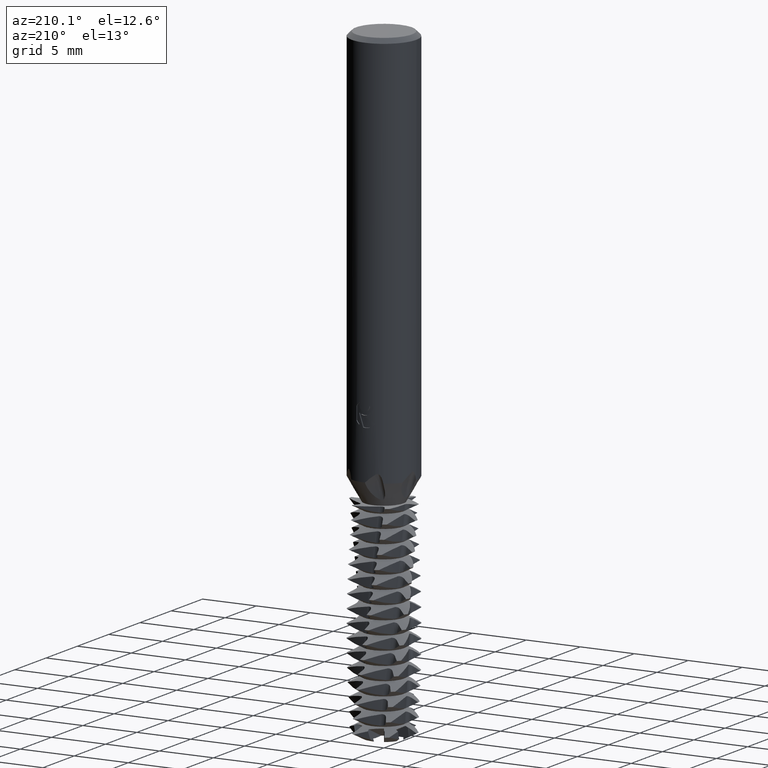
[diagram: clean part render]
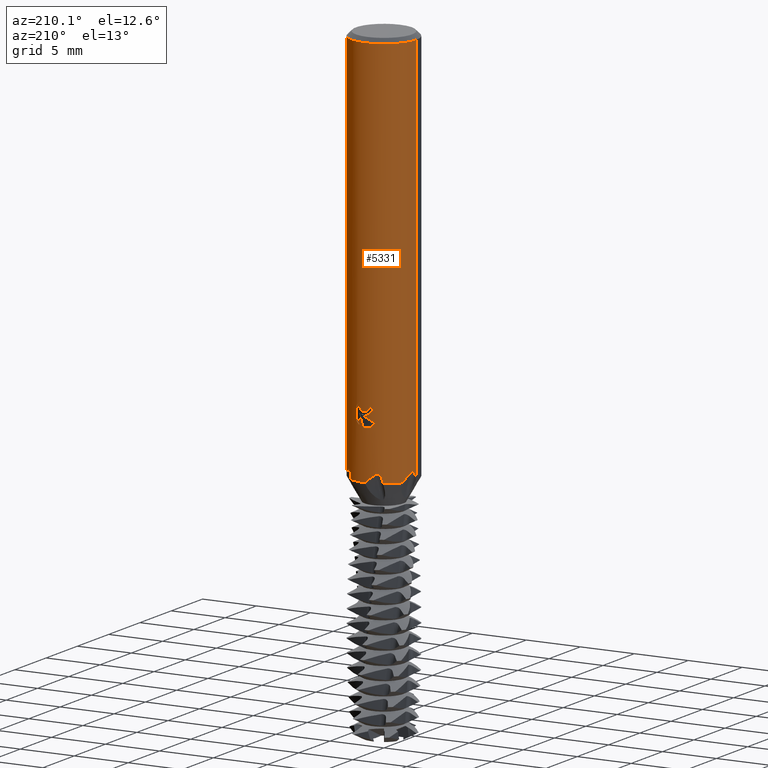
[diagram: same view with one face highlighted and labeled with its STEP entity id]
A machine part, auxiliary view. The second image highlights one B-rep face of the part: STEP entity #5331.
In plain terms, the highlighted cylindrical surface (partial cylindrical patch) has radius 3 mm, axis along (-0, -0, 1).
Its self-contained STEP definition (entity closure, byte-faithful):
#3035=EDGE_CURVE('',#3593,#5919,#8692,.T.);
#3069=VERTEX_POINT('',#8728);
#3123=EDGE_CURVE('',#6895,#4263,#8784,.T.);
#3193=EDGE_CURVE('',#4113,#5917,#8859,.T.);
#3329=VERTEX_POINT('',#9004);
#3381=VERTEX_POINT('',#9059);
#3475=EDGE_CURVE('',#5917,#3381,#9163,.T.);
#3593=VERTEX_POINT('',#9298);
#3607=EDGE_CURVE('',#4331,#3381,#9313,.T.);
#3623=EDGE_CURVE('',#6535,#5625,#9329,.T.);
#3693=EDGE_CURVE('',#3973,#3329,#9403,.T.);
#3857=VERTEX_POINT('',#9578);
#3937=EDGE_CURVE('',#7477,#7463,#9665,.T.);
#3959=EDGE_CURVE('',#8279,#5919,#9690,.T.);
#3973=VERTEX_POINT('',#9706);
#4059=EDGE_CURVE('',#5183,#4263,#9799,.T.);
#4113=VERTEX_POINT('',#9858);
#4263=VERTEX_POINT('',#10020);
#4331=VERTEX_POINT('',#10092);
#4335=VERTEX_POINT('',#10097);
#4349=VERTEX_POINT('',#10111);
#4801=EDGE_CURVE('',#5497,#7477,#10606,.T.);
#4829=EDGE_CURVE('',#4349,#3857,#10637,.T.);
#4845=EDGE_CURVE('',#6549,#3069,#10654,.T.);
#5091=EDGE_CURVE('',#7463,#6863,#10920,.T.);
#5121=VERTEX_POINT('',#10951);
#5181=VERTEX_POINT('',#11018);
#5183=VERTEX_POINT('',#11020);
#5331=ADVANCED_FACE('',(#11182,#11183),#11184,.T.);
#5497=VERTEX_POINT('',#11365);
#5625=VERTEX_POINT('',#11503);
#5897=EDGE_CURVE('',#6535,#7381,#11799,.T.);
#5917=VERTEX_POINT('',#11820);
#5919=VERTEX_POINT('',#11822);
#5925=EDGE_CURVE('',#7049,#5497,#11828,.T.);
#5969=VERTEX_POINT('',#11876);
#5985=EDGE_CURVE('',#8179,#5121,#11894,.T.);
#6211=EDGE_CURVE('',#7381,#4113,#12145,.T.);
#6535=VERTEX_POINT('',#12492);
#6549=VERTEX_POINT('',#12506);
#6745=EDGE_CURVE('',#5625,#5121,#12719,.T.);
#6753=EDGE_CURVE('',#3593,#4349,#12727,.T.);
#6863=VERTEX_POINT('',#12849);
#6895=VERTEX_POINT('',#12884);
#7049=VERTEX_POINT('',#13051);
#7153=EDGE_CURVE('',#5181,#7363,#13163,.T.);
#7165=VERTEX_POINT('',#13176);
#7219=EDGE_CURVE('',#3069,#7941,#13236,.T.);
#7249=EDGE_CURVE('',#7941,#7453,#13267,.T.);
#7295=EDGE_CURVE('',#7165,#6549,#13315,.T.);
#7317=EDGE_CURVE('',#3329,#5969,#13339,.T.);
#7363=VERTEX_POINT('',#13395);
#7379=VERTEX_POINT('',#13414);
#7381=VERTEX_POINT('',#13416);
#7391=EDGE_CURVE('',#4335,#7165,#13426,.T.);
#7397=EDGE_CURVE('',#3857,#5183,#13432,.T.);
#7453=VERTEX_POINT('',#13494);
#7463=VERTEX_POINT('',#13505);
#7477=VERTEX_POINT('',#13519);
#7575=EDGE_CURVE('',#7379,#8179,#13627,.T.);
#7749=EDGE_CURVE('',#7363,#8279,#13815,.T.);
#7929=EDGE_CURVE('',#4331,#5181,#14012,.T.);
#7941=VERTEX_POINT('',#14026);
#8039=EDGE_CURVE('',#7379,#6895,#14133,.T.);
#8179=VERTEX_POINT('',#14286);
#8279=VERTEX_POINT('',#14398);
#8315=EDGE_CURVE('',#5969,#4335,#14439,.T.);
#8443=EDGE_CURVE('',#6863,#3973,#14575,.T.);
#8535=EDGE_CURVE('',#7453,#7049,#14674,.T.);
#8692=CIRCLE('',#15108,3.0);
#8728=CARTESIAN_POINT('',(-0.374889326818675,2.97648416636767,-30.2114147991314));
#8784=CIRCLE('',#15375,3.0);
#8859=B_SPLINE_CURVE_WITH_KNOTS('',3,(#15637,#15638,#15639,#15640,#15641,#15642,#15643,#15644,#15645,#15646,#15647,#15648,#15649,#15650,#15651,#15652,#15653,#15654,#15655,#15656,#15657,#15658),.UNSPECIFIED.,.F.,.F.,(4,2,2,2,2,2,2,2,2,2,4),(0.0,0.429894945051172,0.744299524857573,0.972807913524228,1.14785783106501,1.29831336793423,1.45188908422906,1.65287204626003,1.96971497149822,2.47426665692935,2.98051194071608),.UNSPECIFIED.);
#9004=CARTESIAN_POINT('',(0.891473376764386,2.8644851576715,-31.5267771335505));
#9059=CARTESIAN_POINT('',(1.54380865566936,2.5722859161999,-36.5204758472839));
#9163=B_SPLINE_CURVE_WITH_KNOTS('',3,(#17395,#17396,#17397,#17398,#17399,#17400,#17401,#17402,#17403,#17404,#17405,#17406,#17407,#17408,#17409,#17410,#17411,#17412,#17413,#17414,#17415,#17416),.UNSPECIFIED.,.F.,.F.,(4,2,2,2,2,2,2,2,2,2,4),(0.0,1.8522031519724,3.70440630394481,5.55660945591721,6.48271103190341,7.40881260788961,8.33491418387581,9.26101575986201,11.1132189118344,12.9654220638068,14.8176252157792),.UNSPECIFIED.);
#9298=CARTESIAN_POINT('',(-2.58403707332399,1.52405787412657,-36.5204758472839));
#9313=CIRCLE('',#18402,3.0);
#9329=CIRCLE('',#18445,3.0);
#9403=B_SPLINE_CURVE_WITH_KNOTS('',3,(#18681,#18682,#18683,#18684,#18685,#18686),.UNSPECIFIED.,.F.,.F.,(4,2,4),(5.37061403560931,5.78319523502767,6.19635785632554),.UNSPECIFIED.);
#9578=CARTESIAN_POINT('',(-2.96501428171159,0.456826344737595,-35.7434369320341));
#9665=B_SPLINE_CURVE_WITH_KNOTS('',3,(#20207,#20208,#20209,#20210,#20211,#20212,#20213,#20214,#20215,#20216),.UNSPECIFIED.,.F.,.F.,(4,2,2,2,4),(3.7180505964763,4.13134061429957,4.54468699148887,4.95803336867818,5.37061460596984),.UNSPECIFIED.);
#9690=B_SPLINE_CURVE_WITH_KNOTS('',3,(#20405,#20406,#20407,#20408,#20409,#20410,#20411,#20412,#20413,#20414,#20415,#20416,#20417,#20418,#20419,#20420,#20421,#20422),.UNSPECIFIED.,.F.,.F.,(4,2,2,2,2,2,2,2,4),(0.0,1.30288244341097,2.60576488682195,3.90864733023292,5.21152977364389,6.51441221705487,7.81729466046584,9.12017710387681,10.4230595472878),.UNSPECIFIED.);
#9706=CARTESIAN_POINT('',(0.582373854505971,2.9429306301012,-31.8391567861021));
#9799=B_SPLINE_CURVE_WITH_KNOTS('',3,(#20868,#20869,#20870,#20871,#20872,#20873,#20874,#20875,#20876,#20877,#20878,#20879,#20880,#20881,#20882,#20883,#20884,#20885,#20886,#20887,#20888,#20889,#20890,#20891,#20892,#20893,#20894,#20895,#20896,#20897),.UNSPECIFIED.,.F.,.F.,(4,2,2,2,2,2,2,2,2,2,2,2,2,2,4),(0.0,1.1109967462916,2.22199349258321,4.44398698516642,5.55498373145802,6.66598047774963,7.77697722404123,8.88797397033283,9.99897071662444,11.109967462916,12.2209642092076,13.3319609554992,15.5539544480825,16.6649511943741,17.7759479406657),.UNSPECIFIED.);
#9858=CARTESIAN_POINT('',(1.87813036285146,2.33936451712851,-35.743436930271));
#10020=CARTESIAN_POINT('',(-2.99956927706072,0.0508345562920203,-36.5204758472839));
#10092=CARTESIAN_POINT('',(0.0278542991693245,2.99987068688265,-36.5204758472839));
#10097=CARTESIAN_POINT('',(0.532954484256243,2.95228039279997,-30.000000184582));
#10111=CARTESIAN_POINT('',(-2.91523429804562,0.708102384898168,-35.8207409246121));
#10606=B_SPLINE_CURVE_WITH_KNOTS('',3,(#24894,#24895,#24896,#24897,#24898,#24899,#24900,#24901,#24902,#24903),.UNSPECIFIED.,.F.,.F.,(4,2,2,2,4),(3.7180505964763,4.13134061429957,4.54468699148887,4.95803336867818,5.37061460596984),.UNSPECIFIED.);
#10637=B_SPLINE_CURVE_WITH_KNOTS('',3,(#25121,#25122,#25123,#25124,#25125,#25126,#25127,#25128,#25129,#25130,#25131,#25132,#25133,#25134,#25135,#25136,#25137,#25138,#25139,#25140,#25141,#25142),.UNSPECIFIED.,.F.,.F.,(4,2,2,2,2,2,2,2,2,2,4),(0.0,0.419839124885724,0.734193008932406,0.971026823468447,1.14567788264497,1.29588151022332,1.44826417780657,1.64611878588783,1.95551356744279,2.44687634464264,2.97551455291334),.UNSPECIFIED.);
#10654=B_SPLINE_CURVE_WITH_KNOTS('',3,(#25261,#25262,#25263,#25264,#25265,#25266,#25267,#25268,#25269,#25270,#25271,#25272,#25273,#25274,#25275,#25276,#25277,#25278,#25279,#25280,#25281,#25282,#25283,#25284,#25285,#25286,#25287),.UNSPECIFIED.,.F.,.F.,(4,2,3,2,2,2,2,2,2,2,2,2,4),(-0.361803933418174,-0.180901966709087,0.0,0.180901966709087,0.361803933418174,0.543174103043884,0.724544272669595,0.905125941717734,1.08570761076587,1.26652186351615,1.44733611626643,1.62815036901671,1.80896462176699),.UNSPECIFIED.);
#10920=ELLIPSE('',#26648,9.14398372010932,3.0);
#10951=CARTESIAN_POINT('',(3.0,3.67381906146713E-016,-0.399999999999999));
#11018=CARTESIAN_POINT('',(-0.84438249522065,2.87871815254028,-35.8207409246121));
#11020=CARTESIAN_POINT('',(-2.99735747351845,0.125889538656215,-36.2290858054188));
#11182=FACE_OUTER_BOUND('',#27968,.T.);
#11183=FACE_BOUND('',#27969,.T.);
#11184=CYLINDRICAL_SURFACE('',#27970,3.0);
#11365=CARTESIAN_POINT('',(-0.891368501628665,2.86451779437731,-31.581386927253));
#11503=CARTESIAN_POINT('',(3.0,3.67381906146713E-016,-36.5204758472839));
#11799=B_SPLINE_CURVE_WITH_KNOTS('',3,(#31310,#31311,#31312,#31313,#31314,#31315,#31316,#31317),.UNSPECIFIED.,.F.,.F.,(4,2,2,4),(0.0,1.06715499625699,1.69339863956184,2.32513282306337),.UNSPECIFIED.);
#11820=CARTESIAN_POINT('',(1.60770227530621,2.53284294696202,-36.2290858054188));
#11822=CARTESIAN_POINT('',(-1.45576062139136,2.62312047249192,-36.5204758472839));
#11828=ELLIPSE('',#31428,3.34478529612858,3.0);
#11876=CARTESIAN_POINT('',(0.891473376764386,2.8644851576715,-30.3433656243214));
#11894=CIRCLE('',#31801,3.0);
#12145=B_SPLINE_CURVE_WITH_KNOTS('',3,(#33175,#33176,#33177,#33178,#33179,#33180,#33181,#33182,#33183,#33184,#33185,#33186,#33187,#33188,#33189,#33190,#33191,#33192,#33193,#33194,#33195,#33196),.UNSPECIFIED.,.F.,.F.,(4,2,2,2,2,2,2,2,2,2,4),(0.0,0.429894945051172,0.744299524857573,0.972807913524228,1.14785783106501,1.29831336793423,1.45188908422906,1.65287204626003,1.96971497149822,2.47426665692935,2.98051194071608),.UNSPECIFIED.);
#12492=CARTESIAN_POINT('',(2.61189137249331,1.47581281275608,-36.5204758472839));
#12506=CARTESIAN_POINT('',(-0.324252629588696,2.98242522659074,-30.4288558322004));
#12719=LINE('',#36292,#36293);
#12727=B_SPLINE_CURVE_WITH_KNOTS('',3,(#36316,#36317,#36318,#36319,#36320,#36321),.UNSPECIFIED.,.F.,.F.,(4,2,4),(0.0,0.802659644207011,1.61391893733511),.UNSPECIFIED.);
#12849=CARTESIAN_POINT('',(0.582373854505972,2.9429306301012,-30.8799287730727));
#12884=CARTESIAN_POINT('',(-3.0,-3.67381906146713E-016,-36.5204758472839));
#13051=CARTESIAN_POINT('',(0.382084690553746,2.9755690698158,-30.9535533116178));
#13163=B_SPLINE_CURVE_WITH_KNOTS('',3,(#38747,#38748,#38749,#38750,#38751,#38752,#38753,#38754,#38755,#38756,#38757,#38758,#38759,#38760,#38761,#38762,#38763,#38764),.UNSPECIFIED.,.F.,.F.,(4,2,2,2,2,2,2,2,4),(0.0,0.182905243946741,0.312250991405555,0.414721280745218,0.512819152749077,0.629772986335081,0.802075148146783,1.06599409195254,1.50610069878895),.UNSPECIFIED.);
#13176=CARTESIAN_POINT('',(1.73559189833068E-015,3.0,-30.6821792078495));
#13236=CIRCLE('',#39309,3.0);
#13267=B_SPLINE_CURVE_WITH_KNOTS('',3,(#39451,#39452,#39453,#39454,#39455,#39456,#39457,#39458,#39459,#39460,#39461,#39462,#39463,#39464),.UNSPECIFIED.,.F.,.F.,(4,2,2,2,2,2,4),(2.09113289106874,2.38963585353195,2.68813881599517,2.98664177845838,3.28438387238361,3.58212596630883,3.88192308218951),.UNSPECIFIED.);
#13315=B_SPLINE_CURVE_WITH_KNOTS('',3,(#39674,#39675,#39676,#39677,#39678,#39679,#39680,#39681,#39682,#39683,#39684,#39685,#39686,#39687,#39688,#39689,#39690,#39691,#39692,#39693,#39694,#39695,#39696,#39697,#39698,#39699,#39700),.UNSPECIFIED.,.F.,.F.,(4,2,3,2,2,2,2,2,2,2,2,2,4),(-0.361803933418174,-0.180901966709087,0.0,0.180901966709087,0.361803933418174,0.543174103043884,0.724544272669595,0.905125941717734,1.08570761076587,1.26652186351615,1.44733611626643,1.62815036901671,1.80896462176699),.UNSPECIFIED.);
#13339=LINE('',#39798,#39799);
#13395=CARTESIAN_POINT('',(-1.08688392119502,2.79619086291473,-35.743436932034));
#13414=CARTESIAN_POINT('',(-3.0,-3.67381906146713E-016,-0.399999999999999));
#13416=CARTESIAN_POINT('',(2.07085180282496,2.17061576764212,-35.8207409246121));
#13426=B_SPLINE_CURVE_WITH_KNOTS('',3,(#40358,#40359,#40360,#40361,#40362,#40363,#40364,#40365,#40366,#40367,#40368,#40369,#40370,#40371,#40372,#40373,#40374,#40375,#40376,#40377,#40378,#40379,#40380,#40381,#40382,#40383,#40384),.UNSPECIFIED.,.F.,.F.,(4,2,3,2,2,2,2,2,2,2,2,2,4),(-0.361803933418174,-0.180901966709087,0.0,0.180901966709087,0.361803933418174,0.543174103043884,0.724544272669595,0.905125941717734,1.08570761076587,1.26652186351615,1.44733611626643,1.62815036901671,1.80896462176699),.UNSPECIFIED.);
#13432=B_SPLINE_CURVE_WITH_KNOTS('',3,(#40392,#40393,#40394,#40395,#40396,#40397,#40398,#40399,#40400,#40401,#40402,#40403,#40404,#40405,#40406,#40407,#40408,#40409,#40410,#40411,#40412,#40413),.UNSPECIFIED.,.F.,.F.,(4,2,2,2,2,2,2,2,2,2,4),(0.0,0.419839124885724,0.734193008932406,0.971026823468447,1.14567788264497,1.29588151022332,1.44826417780657,1.64611878588783,1.95551356744279,2.44687634464264,2.97551455291334),.UNSPECIFIED.);
#13494=CARTESIAN_POINT('',(-1.62056928315541E-016,3.0,-31.0000534367921));
#13505=CARTESIAN_POINT('',(0.193402084690554,2.99375944819175,-31.9998885993485));
#13519=CARTESIAN_POINT('',(-4.20342910929293E-016,3.0,-32.0206835734022));
#13627=CIRCLE('',#41516,3.0);
#13815=B_SPLINE_CURVE_WITH_KNOTS('',3,(#42283,#42284,#42285,#42286,#42287,#42288,#42289,#42290,#42291,#42292,#42293,#42294,#42295,#42296,#42297,#42298,#42299,#42300),.UNSPECIFIED.,.F.,.F.,(4,2,2,2,2,2,2,2,4),(0.0,0.182905243946741,0.312250991405555,0.414721280745218,0.512819152749077,0.629772986335081,0.802075148146783,1.06599409195254,1.50610069878895),.UNSPECIFIED.);
#14012=B_SPLINE_CURVE_WITH_KNOTS('',3,(#43115,#43116,#43117,#43118,#43119,#43120),.UNSPECIFIED.,.F.,.F.,(4,2,4),(0.0,0.769435495781174,1.519822892582),.UNSPECIFIED.);
#14026=CARTESIAN_POINT('',(-0.690048935939197,2.91956032066631,-30.2114147991314));
#14133=LINE('',#43772,#43773);
#14286=CARTESIAN_POINT('',(0.0,3.0,-0.399999999999999));
#14398=CARTESIAN_POINT('',(-1.38965519821224,2.65873248561823,-36.2290858054188));
#14439=B_SPLINE_CURVE_WITH_KNOTS('',3,(#45401,#45402,#45403,#45404,#45405,#45406),.UNSPECIFIED.,.F.,.F.,(4,2,4),(0.413162635699146,0.826325271398292,1.2389064846868),.UNSPECIFIED.);
#14575=LINE('',#46053,#46054);
#14674=B_SPLINE_CURVE_WITH_KNOTS('',3,(#46616,#46617,#46618,#46619,#46620,#46621,#46622,#46623,#46624,#46625,#46626,#46627,#46628,#46629),.UNSPECIFIED.,.F.,.F.,(4,2,2,2,2,2,4),(2.09113289106874,2.38963585353195,2.68813881599517,2.98664177845838,3.28438387238361,3.58212596630883,3.88192308218951),.UNSPECIFIED.);
#15108=AXIS2_PLACEMENT_3D('',#46751,#46752,#46753);
#15375=AXIS2_PLACEMENT_3D('',#46801,#46802,#46803);
#15637=CARTESIAN_POINT('',(2.13206020542349,2.11052583032039,-36.5209676838103));
#15638=CARTESIAN_POINT('',(2.15164541267667,2.09074078888683,-36.3803996259911));
#15639=CARTESIAN_POINT('',(2.156889872643,2.08518517846577,-36.2451093580247));
#15640=CARTESIAN_POINT('',(2.14107575005316,2.10140100342424,-36.0384214199832));
#15641=CARTESIAN_POINT('',(2.12690410536444,2.11591695693535,-35.9629422580567));
#15642=CARTESIAN_POINT('',(2.09157472239241,2.15075598640957,-35.8574251414258));
#15643=CARTESIAN_POINT('',(2.0734747718693,2.16829844712777,-35.8208847408643));
#15644=CARTESIAN_POINT('',(2.03668843011507,2.20281160654624,-35.7714448823329));
#15645=CARTESIAN_POINT('',(2.01821648137218,2.21982069529535,-35.7537925202219));
#15646=CARTESIAN_POINT('',(1.97892784999315,2.25486957549707,-35.7322951963295));
#15647=CARTESIAN_POINT('',(1.95966962041502,2.2716482635832,-35.7273461662947));
#15648=CARTESIAN_POINT('',(1.91915050160728,2.30598810883786,-35.7277563597803));
#15649=CARTESIAN_POINT('',(1.89888808252604,2.32268261453498,-35.7333134565215));
#15650=CARTESIAN_POINT('',(1.85370246017431,2.35899703027452,-35.7553388369102));
#15651=CARTESIAN_POINT('',(1.82968575867676,2.37760252280092,-35.7744235573319));
#15652=CARTESIAN_POINT('',(1.77361422839766,2.41994647178829,-35.831903552503));
#15653=CARTESIAN_POINT('',(1.74355309897655,2.44151061204243,-35.8764090640133));
#15654=CARTESIAN_POINT('',(1.67800262751282,2.4873117989547,-35.9969842268149));
#15655=CARTESIAN_POINT('',(1.64285847137458,2.51038209834154,-36.0889252854333));
#15656=CARTESIAN_POINT('',(1.58942633550985,2.54454964585405,-36.2993691409393));
#15657=CARTESIAN_POINT('',(1.57300065541601,2.5545508436338,-36.4108948803172));
#15658=CARTESIAN_POINT('',(1.56633539808355,2.55863116152181,-36.5209676838103));
#17395=CARTESIAN_POINT('',(2.87266756705601,0.86474334295473,-31.3649487792908));
#17396=CARTESIAN_POINT('',(2.78275702966515,1.16342512732878,-31.8977614520963));
#17397=CARTESIAN_POINT('',(2.64997985782,1.43457720676138,-32.4628663141818));
#17398=CARTESIAN_POINT('',(2.33426117367684,1.90568346269897,-33.632301232698));
#17399=CARTESIAN_POINT('',(2.15059285653007,2.10491733529039,-34.2367250180236));
#17400=CARTESIAN_POINT('',(1.79493810228648,2.41534653486289,-35.4668194662849));
#17401=CARTESIAN_POINT('',(1.62417735102327,2.52617623539687,-36.0938166563847));
#17402=CARTESIAN_POINT('',(1.44282334958125,2.63118610981709,-37.0370909318227));
#17403=CARTESIAN_POINT('',(1.39483093247364,2.65626632460214,-37.3520049948315));
#17404=CARTESIAN_POINT('',(1.33048630207349,2.68907238974332,-37.9791084338925));
#17405=CARTESIAN_POINT('',(1.31417214534074,2.69684103580662,-38.2912994746713));
#17406=CARTESIAN_POINT('',(1.31417214534074,2.69684103580662,-38.9087005253287));
#17407=CARTESIAN_POINT('',(1.33048630207349,2.68907238974332,-39.2208915661075));
#17408=CARTESIAN_POINT('',(1.39483093247364,2.65626632460214,-39.8479950051685));
#17409=CARTESIAN_POINT('',(1.44282334958125,2.63118610981708,-40.1629090681773));
#17410=CARTESIAN_POINT('',(1.62417735102327,2.52617623539687,-41.1061833436153));
#17411=CARTESIAN_POINT('',(1.79493810228648,2.4153465348629,-41.7331805337151));
#17412=CARTESIAN_POINT('',(2.15059285653006,2.10491733529039,-42.9632749819764));
#17413=CARTESIAN_POINT('',(2.33426117367684,1.90568346269897,-43.5676987673019));
#17414=CARTESIAN_POINT('',(2.64997985782,1.43457720676138,-44.7371336858182));
#17415=CARTESIAN_POINT('',(2.78275702966515,1.16342512732878,-45.3022385479037));
#17416=CARTESIAN_POINT('',(2.87266756705601,0.864743342954729,-45.8350512207092));
#18402=AXIS2_PLACEMENT_3D('',#47242,#47243,#47244);
#18445=AXIS2_PLACEMENT_3D('',#47246,#47247,#47248);
#18681=CARTESIAN_POINT('',(0.398123698004262,2.97346557422268,-31.9375657715496));
#18682=CARTESIAN_POINT('',(0.531694134430897,2.95558154132786,-31.8820012071797));
#18683=CARTESIAN_POINT('',(0.652986684836442,2.92973948468781,-31.7986530435559));
#18684=CARTESIAN_POINT('',(0.844504834229856,2.88038264567376,-31.6072212554403));
#18685=CARTESIAN_POINT('',(0.927882280849386,2.85350635586587,-31.48591873854));
#18686=CARTESIAN_POINT('',(0.983486691170998,2.8342113415004,-31.3523418975951));
#20207=CARTESIAN_POINT('',(-1.02132776817343,2.82079591426921,-31.3522829864432));
#20208=CARTESIAN_POINT('',(-0.965764390649038,2.84091377135135,-31.4857834663591));
#20209=CARTESIAN_POINT('',(-0.882488696185025,2.86897832973726,-31.6069660991348));
#20210=CARTESIAN_POINT('',(-0.691193523521741,2.92097195256754,-31.798350851362));
#20211=CARTESIAN_POINT('',(-0.569948678637509,2.94845618546556,-31.881755621575));
#20212=CARTESIAN_POINT('',(-0.302743898392696,2.98773852714254,-31.9930383682645));
#20213=CARTESIAN_POINT('',(-0.156687501965709,2.99907201328984,-32.0208482223391));
#20214=CARTESIAN_POINT('',(0.118616234604332,3.00080720579868,-32.0208482223391));
#20215=CARTESIAN_POINT('',(0.264553433001764,2.99134959251714,-31.9931306302633));
#20216=CARTESIAN_POINT('',(0.39812388065688,2.97346554976692,-31.937566060937));
#20405=CARTESIAN_POINT('',(-0.33877072290892,2.98081103012247,-33.3386970799754));
#20406=CARTESIAN_POINT('',(-0.522387614677131,2.9599428749345,-33.7317120465772));
#20407=CARTESIAN_POINT('',(-0.703073997634441,2.92155534880515,-34.1473996086188));
#20408=CARTESIAN_POINT('',(-1.03354240807752,2.82162873839005,-35.0070576931305));
#20409=CARTESIAN_POINT('',(-1.18305602443361,2.76023414879084,-35.4511481626328));
#20410=CARTESIAN_POINT('',(-1.42805932340697,2.64180959782692,-36.3516272722531));
#20411=CARTESIAN_POINT('',(-1.5233502211041,2.58550576035101,-36.8086175174777));
#20412=CARTESIAN_POINT('',(-1.64851850650812,2.50755312157797,-37.7156336152819));
#20413=CARTESIAN_POINT('',(-1.6784467743065,2.48652698071429,-38.1657058521963));
#20414=CARTESIAN_POINT('',(-1.6784467743065,2.48652698071429,-39.0342941478037));
#20415=CARTESIAN_POINT('',(-1.64851850650812,2.50755312157797,-39.4843663847181));
#20416=CARTESIAN_POINT('',(-1.5233502211041,2.58550576035101,-40.3913824825223));
#20417=CARTESIAN_POINT('',(-1.42805932340697,2.64180959782692,-40.8483727277469));
#20418=CARTESIAN_POINT('',(-1.18305602443361,2.76023414879084,-41.7488518373672));
#20419=CARTESIAN_POINT('',(-1.03354240807751,2.82162873839005,-42.1929423068695));
#20420=CARTESIAN_POINT('',(-0.703073997634433,2.92155534880515,-43.0526003913812));
#20421=CARTESIAN_POINT('',(-0.522387614677135,2.9599428749345,-43.4682879534229));
#20422=CARTESIAN_POINT('',(-0.338770722908923,2.98081103012247,-43.8613029200246));
#20868=CARTESIAN_POINT('',(-1.59958525082729,2.53797695524128,-30.1860908076423));
#20869=CARTESIAN_POINT('',(-1.78341134517344,2.42211872862261,-30.4859754735336));
#20870=CARTESIAN_POINT('',(-1.94210553755449,2.29477091694835,-30.797837323771));
#20871=CARTESIAN_POINT('',(-2.22187065339716,2.02510203039488,-31.4387520245088));
#20872=CARTESIAN_POINT('',(-2.3426346375062,1.8826593308073,-31.7678876372867));
#20873=CARTESIAN_POINT('',(-2.65483433686594,1.44264437271394,-32.7755014173818));
#20874=CARTESIAN_POINT('',(-2.79517455687149,1.13096429800967,-33.473409638152));
#20875=CARTESIAN_POINT('',(-2.92255462008151,0.694031240860119,-34.5444446317688));
#20876=CARTESIAN_POINT('',(-2.95125105066657,0.553853014457472,-34.9056868185497));
#20877=CARTESIAN_POINT('',(-2.98789701006071,0.298508594696432,-35.6344682912949));
#20878=CARTESIAN_POINT('',(-2.99590338594857,0.183471350753219,-36.0020498915696));
#20879=CARTESIAN_POINT('',(-3.00150737631061,-0.00722110610543583,-36.7412689994485));
#20880=CARTESIAN_POINT('',(-2.99928910705556,-0.0827600833583237,-37.1130569644805));
#20881=CARTESIAN_POINT('',(-2.99476305794572,-0.184332865338249,-37.8572522571078));
#20882=CARTESIAN_POINT('',(-2.99261891964724,-0.210314055092331,-38.2296677512361));
#20883=CARTESIAN_POINT('',(-2.99261891964724,-0.210314055092331,-38.9703322487639));
#20884=CARTESIAN_POINT('',(-2.99476305794572,-0.184332865338247,-39.3427477428922));
#20885=CARTESIAN_POINT('',(-2.99928910705556,-0.0827600833583208,-40.0869430355195));
#20886=CARTESIAN_POINT('',(-3.00150737631061,-0.00722110610543534,-40.4587310005516));
#20887=CARTESIAN_POINT('',(-2.99590338594857,0.18347135075322,-41.1979501084304));
#20888=CARTESIAN_POINT('',(-2.98789701006071,0.298508594696433,-41.5655317087051));
#20889=CARTESIAN_POINT('',(-2.95125105066657,0.553853014457473,-42.2943131814503));
#20890=CARTESIAN_POINT('',(-2.92255462008151,0.69403124086012,-42.6555553682312));
#20891=CARTESIAN_POINT('',(-2.79517455687149,1.13096429800968,-43.726590361848));
#20892=CARTESIAN_POINT('',(-2.65483433686594,1.44264437271394,-44.4244985826182));
#20893=CARTESIAN_POINT('',(-2.3426346375062,1.8826593308073,-45.4321123627133));
#20894=CARTESIAN_POINT('',(-2.22187065339716,2.02510203039488,-45.7612479754912));
#20895=CARTESIAN_POINT('',(-1.94210553755448,2.29477091694835,-46.402162676229));
#20896=CARTESIAN_POINT('',(-1.78341134517344,2.42211872862262,-46.7140245264664));
#20897=CARTESIAN_POINT('',(-1.59958525082729,2.53797695524128,-47.0139091923577));
#24894=CARTESIAN_POINT('',(-1.02132776817343,2.82079591426921,-31.3522829864432));
#24895=CARTESIAN_POINT('',(-0.965764390649038,2.84091377135135,-31.4857834663591));
#24896=CARTESIAN_POINT('',(-0.882488696185025,2.86897832973726,-31.6069660991348));
#24897=CARTESIAN_POINT('',(-0.691193523521741,2.92097195256754,-31.798350851362));
#24898=CARTESIAN_POINT('',(-0.569948678637509,2.94845618546556,-31.881755621575));
#24899=CARTESIAN_POINT('',(-0.302743898392696,2.98773852714254,-31.9930383682645));
#24900=CARTESIAN_POINT('',(-0.156687501965709,2.99907201328984,-32.0208482223391));
#24901=CARTESIAN_POINT('',(0.118616234604332,3.00080720579868,-32.0208482223391));
#24902=CARTESIAN_POINT('',(0.264553433001764,2.99134959251714,-31.9931306302633));
#24903=CARTESIAN_POINT('',(0.39812388065688,2.97346554976692,-31.937566060937));
#25121=CARTESIAN_POINT('',(-2.89379469113468,0.791171464071312,-36.5208835059126));
#25122=CARTESIAN_POINT('',(-2.88662642887239,0.817390153977699,-36.3836021008327));
#25123=CARTESIAN_POINT('',(-2.88435656077576,0.825002398709584,-36.251211158922));
#25124=CARTESIAN_POINT('',(-2.89000221217002,0.804963769095807,-36.045698653264));
#25125=CARTESIAN_POINT('',(-2.89534063216374,0.786002456077185,-35.9694141048295));
#25126=CARTESIAN_POINT('',(-2.90786092971234,0.738103876821044,-35.8606999204886));
#25127=CARTESIAN_POINT('',(-2.91421281920717,0.712909626228013,-35.8223791241265));
#25128=CARTESIAN_POINT('',(-2.92594211749639,0.6628268085445,-35.7717776345772));
#25129=CARTESIAN_POINT('',(-2.93142988389763,0.63837148545516,-35.7540721279694));
#25130=CARTESIAN_POINT('',(-2.94213467158577,0.586885660793181,-35.7324357243297));
#25131=CARTESIAN_POINT('',(-2.94703934912745,0.561827599110932,-35.7274121369592));
#25132=CARTESIAN_POINT('',(-2.95650116898137,0.509717778607978,-35.7276813127617));
#25133=CARTESIAN_POINT('',(-2.96081181216587,0.483961019085416,-35.7331107195804));
#25134=CARTESIAN_POINT('',(-2.96960714853115,0.427184738487115,-35.7546876907307));
#25135=CARTESIAN_POINT('',(-2.97368338173385,0.397413563511671,-35.7733303224062));
#25136=CARTESIAN_POINT('',(-2.98224256512117,0.328656849023464,-35.8293248517033));
#25137=CARTESIAN_POINT('',(-2.98587797264376,0.292345468747305,-35.872524158663));
#25138=CARTESIAN_POINT('',(-2.99278037587301,0.213586478334041,-35.9895996651486));
#25139=CARTESIAN_POINT('',(-2.99523508382718,0.171997840063994,-36.0785324483698));
#25140=CARTESIAN_POINT('',(-2.99832693200841,0.10588740967928,-36.2897026585663));
#25141=CARTESIAN_POINT('',(-2.99879740039049,0.085326525836005,-36.4061409966515));
#25142=CARTESIAN_POINT('',(-2.99900713003407,0.0771766415752693,-36.5208835059126));
#25261=CARTESIAN_POINT('',(0.443458573511027,2.96704305556552,-29.8757743432194));
#25262=CARTESIAN_POINT('',(0.485833328670291,2.96070966298446,-29.9182059037109));
#25263=CARTESIAN_POINT('',(0.522637343391951,2.95422887694859,-29.971956129247));
#25264=CARTESIAN_POINT('',(0.571525001841125,2.94516166464756,-30.089910892921));
#25265=CARTESIAN_POINT('',(0.583600654125711,2.94268759410578,-30.1541273528215));
#25266=CARTESIAN_POINT('',(0.583600654125711,2.94268759410578,-30.2144280083912));
#25267=CARTESIAN_POINT('',(0.583600654125711,2.94268759410578,-30.2747286639609));
#25268=CARTESIAN_POINT('',(0.571525001841125,2.94516166464756,-30.3389451238613));
#25269=CARTESIAN_POINT('',(0.522637343391951,2.95422887694859,-30.4568998875354));
#25270=CARTESIAN_POINT('',(0.485833328670291,2.96070966298446,-30.5106501130715));
#25271=CARTESIAN_POINT('',(0.400974145779831,2.9733928399688,-30.5956230536475));
#25272=CARTESIAN_POINT('',(0.347166389616654,2.98043529839111,-30.6325291682214));
#25273=CARTESIAN_POINT('',(0.229071320322516,2.99182977456438,-30.6815604886868));
#25274=CARTESIAN_POINT('',(0.164771066124543,2.99608169300326,-30.6936777351831));
#25275=CARTESIAN_POINT('',(0.044193463019362,3.00027836078279,-30.6936777351831));
#25276=CARTESIAN_POINT('',(-0.0199852468881946,3.00051424174061,-30.6816545910218));
#25277=CARTESIAN_POINT('',(-0.138014197498445,2.99740507878826,-30.6327811002069));
#25278=CARTESIAN_POINT('',(-0.191868347012512,2.99416186702984,-30.5959337682488));
#25279=CARTESIAN_POINT('',(-0.276955968165236,2.98749373694095,-30.510918928236));
#25280=CARTESIAN_POINT('',(-0.313862744780408,2.98363829793416,-30.4570480993303));
#25281=CARTESIAN_POINT('',(-0.362835918148008,2.97807948468445,-30.338941579708));
#25282=CARTESIAN_POINT('',(-0.374898799458164,2.97648297326977,-30.2746994259746));
#25283=CARTESIAN_POINT('',(-0.374898799458164,2.97648297326977,-30.1541565908078));
#25284=CARTESIAN_POINT('',(-0.362835918148008,2.97807948468445,-30.0899144370744));
#25285=CARTESIAN_POINT('',(-0.313862744780408,2.98363829793416,-29.9718079174521));
#25286=CARTESIAN_POINT('',(-0.276955968165236,2.98749373694095,-29.9179370885464));
#25287=CARTESIAN_POINT('',(-0.234384777653546,2.99082994769082,-29.8754023120245));
#26648=AXIS2_PLACEMENT_3D('',#48449,#48450,#48451);
#27968=EDGE_LOOP('',(#48683,#48684,#48685,#48686,#48687,#48688,#48689,#48690,#48691,#48692,#48693,#48694,#48695,#48696,#48697,#48698,#48699,#48700,#48701,#48702));
#27969=EDGE_LOOP('',(#48703,#48704,#48705,#48706,#48707,#48708,#48709,#48710,#48711,#48712,#48713,#48714,#48715,#48716));
#27970=AXIS2_PLACEMENT_3D('',#48717,#48718,#48719);
#31310=CARTESIAN_POINT('',(2.61213765204221,1.47537686262982,-36.5209676838103));
#31311=CARTESIAN_POINT('',(2.487345959704,1.69631910896386,-36.2716745048221));
#31312=CARTESIAN_POINT('',(2.32036696445764,1.9247462504315,-36.0534853302432));
#31313=CARTESIAN_POINT('',(1.98407514624786,2.25699123505467,-35.7389289893991));
#31314=CARTESIAN_POINT('',(1.8448539439908,2.37289447917315,-35.6302435905355));
#31315=CARTESIAN_POINT('',(1.53850401319067,2.58219296258998,-35.4298340359543));
#31316=CARTESIAN_POINT('',(1.36998454418995,2.67612368231892,-35.3374666900213));
#31317=CARTESIAN_POINT('',(1.1898739491327,2.7539426256143,-35.2589221928476));
#31428=AXIS2_PLACEMENT_3D('',#49185,#49186,#49187);
#31801=AXIS2_PLACEMENT_3D('',#49238,#49239,#49240);
#33175=CARTESIAN_POINT('',(2.13206020542349,2.11052583032039,-36.5209676838103));
#33176=CARTESIAN_POINT('',(2.15164541267667,2.09074078888683,-36.3803996259911));
#33177=CARTESIAN_POINT('',(2.156889872643,2.08518517846577,-36.2451093580247));
#33178=CARTESIAN_POINT('',(2.14107575005316,2.10140100342424,-36.0384214199832));
#33179=CARTESIAN_POINT('',(2.12690410536444,2.11591695693535,-35.9629422580567));
#33180=CARTESIAN_POINT('',(2.09157472239241,2.15075598640957,-35.8574251414258));
#33181=CARTESIAN_POINT('',(2.0734747718693,2.16829844712777,-35.8208847408643));
#33182=CARTESIAN_POINT('',(2.03668843011507,2.20281160654624,-35.7714448823329));
#33183=CARTESIAN_POINT('',(2.01821648137218,2.21982069529535,-35.7537925202219));
#33184=CARTESIAN_POINT('',(1.97892784999315,2.25486957549707,-35.7322951963295));
#33185=CARTESIAN_POINT('',(1.95966962041502,2.2716482635832,-35.7273461662947));
#33186=CARTESIAN_POINT('',(1.91915050160728,2.30598810883786,-35.7277563597803));
#33187=CARTESIAN_POINT('',(1.89888808252604,2.32268261453498,-35.7333134565215));
#33188=CARTESIAN_POINT('',(1.85370246017431,2.35899703027452,-35.7553388369102));
#33189=CARTESIAN_POINT('',(1.82968575867676,2.37760252280092,-35.7744235573319));
#33190=CARTESIAN_POINT('',(1.77361422839766,2.41994647178829,-35.831903552503));
#33191=CARTESIAN_POINT('',(1.74355309897655,2.44151061204243,-35.8764090640133));
#33192=CARTESIAN_POINT('',(1.67800262751282,2.4873117989547,-35.9969842268149));
#33193=CARTESIAN_POINT('',(1.64285847137458,2.51038209834154,-36.0889252854333));
#33194=CARTESIAN_POINT('',(1.58942633550985,2.54454964585405,-36.2993691409393));
#33195=CARTESIAN_POINT('',(1.57300065541601,2.5545508436338,-36.4108948803172));
#33196=CARTESIAN_POINT('',(1.56633539808355,2.55863116152181,-36.5209676838103));
#36292=CARTESIAN_POINT('',(3.0,3.67381906146713E-016,-36.2602379236419));
#36293=VECTOR('',#49863,1.0);
#36316=CARTESIAN_POINT('',(-2.58382620996051,1.52441533602922,-36.5208835059126));
#36317=CARTESIAN_POINT('',(-2.68081050104093,1.36003063894217,-36.333382995613));
#36318=CARTESIAN_POINT('',(-2.76977807321678,1.17283690853424,-36.1637306018473));
#36319=CARTESIAN_POINT('',(-2.91063205638419,0.759246469453504,-35.8471029991114));
#36320=CARTESIAN_POINT('',(-2.96168711571282,0.533496650685518,-35.7010958158907));
#36321=CARTESIAN_POINT('',(-2.98520443765028,0.297581023308071,-35.5692711205074));
#38747=CARTESIAN_POINT('',(-0.771823605727629,2.89901506060966,-35.9674138952009));
#38748=CARTESIAN_POINT('',(-0.790031167848768,2.89416754310663,-35.9094299850149));
#38749=CARTESIAN_POINT('',(-0.814148852309821,2.88756748224026,-35.8608904672941));
#38750=CARTESIAN_POINT('',(-0.862871927715077,2.87330720232795,-35.7961564095611));
#38751=CARTESIAN_POINT('',(-0.886869741538566,2.86606427481242,-35.7725267540577));
#38752=CARTESIAN_POINT('',(-0.936993389988964,2.85001484535059,-35.7418381772479));
#38753=CARTESIAN_POINT('',(-0.960851038014606,2.84209022584201,-35.7328555954635));
#38754=CARTESIAN_POINT('',(-1.01016243855357,2.82492902334714,-35.7258607411203));
#38755=CARTESIAN_POINT('',(-1.03419939809162,2.81621378224198,-35.7275806294995));
#38756=CARTESIAN_POINT('',(-1.08562769994361,2.79683853304746,-35.7408058022032));
#38757=CARTESIAN_POINT('',(-1.11188803111019,2.78646361835286,-35.753885959971));
#38758=CARTESIAN_POINT('',(-1.17133811247725,2.76214246240282,-35.7948164748041));
#38759=CARTESIAN_POINT('',(-1.20253744815856,2.74859288540706,-35.8271005120704));
#38760=CARTESIAN_POINT('',(-1.27023005172678,2.71818530664496,-35.9152987883712));
#38761=CARTESIAN_POINT('',(-1.30707566370881,2.70051075163358,-35.9828463474897));
#38762=CARTESIAN_POINT('',(-1.38995734556746,2.65920472813078,-36.1960725233097));
#38763=CARTESIAN_POINT('',(-1.42231523522754,2.64143111223998,-36.3549412045594));
#38764=CARTESIAN_POINT('',(-1.43267188575059,2.63580182634807,-36.5209676838103));
#39309=AXIS2_PLACEMENT_3D('',#50234,#50235,#50236);
#39451=CARTESIAN_POINT('',(-0.629737812538841,2.93316046057129,-29.9149899148049));
#39452=CARTESIAN_POINT('',(-0.670100917065333,2.92449466735912,-30.0121641388513));
#39453=CARTESIAN_POINT('',(-0.690072678601243,2.91955470889793,-30.1180335863341));
#39454=CARTESIAN_POINT('',(-0.690072678601243,2.91955470889793,-30.3170355613096));
#39455=CARTESIAN_POINT('',(-0.670100917065334,2.92449466735913,-30.4229050087924));
#39456=CARTESIAN_POINT('',(-0.589374708012365,2.94182625378348,-30.6172534568852));
#39457=CARTESIAN_POINT('',(-0.528638763888801,2.95390542067934,-30.7057678801992));
#39458=CARTESIAN_POINT('',(-0.388832397693834,2.97553356629532,-30.8453648384854));
#39459=CARTESIAN_POINT('',(-0.300380005530008,2.98650908707072,-30.9059303879383));
#39460=CARTESIAN_POINT('',(-0.106254247897169,2.99969576942557,-30.9863801586355));
#39461=CARTESIAN_POINT('',(-0.000555202912711383,3.00164117294824,-31.0062457533911));
#39462=CARTESIAN_POINT('',(0.198516841799456,2.99509224273436,-31.0062457533911));
#39463=CARTESIAN_POINT('',(0.304534011636509,2.98611272762047,-30.9861338936502));
#39464=CARTESIAN_POINT('',(0.401682857241352,2.97298686209651,-30.9457031277352));
#39674=CARTESIAN_POINT('',(0.443458573511027,2.96704305556552,-29.8757743432194));
#39675=CARTESIAN_POINT('',(0.485833328670291,2.96070966298446,-29.9182059037109));
#39676=CARTESIAN_POINT('',(0.522637343391951,2.95422887694859,-29.971956129247));
#39677=CARTESIAN_POINT('',(0.571525001841125,2.94516166464756,-30.089910892921));
#39678=CARTESIAN_POINT('',(0.583600654125711,2.94268759410578,-30.1541273528215));
#39679=CARTESIAN_POINT('',(0.583600654125711,2.94268759410578,-30.2144280083912));
#39680=CARTESIAN_POINT('',(0.583600654125711,2.94268759410578,-30.2747286639609));
#39681=CARTESIAN_POINT('',(0.571525001841125,2.94516166464756,-30.3389451238613));
#39682=CARTESIAN_POINT('',(0.522637343391951,2.95422887694859,-30.4568998875354));
#39683=CARTESIAN_POINT('',(0.485833328670291,2.96070966298446,-30.5106501130715));
#39684=CARTESIAN_POINT('',(0.400974145779831,2.9733928399688,-30.5956230536475));
#39685=CARTESIAN_POINT('',(0.347166389616654,2.98043529839111,-30.6325291682214));
#39686=CARTESIAN_POINT('',(0.229071320322516,2.99182977456438,-30.6815604886868));
#39687=CARTESIAN_POINT('',(0.164771066124543,2.99608169300326,-30.6936777351831));
#39688=CARTESIAN_POINT('',(0.044193463019362,3.00027836078279,-30.6936777351831));
#39689=CARTESIAN_POINT('',(-0.0199852468881946,3.00051424174061,-30.6816545910218));
#39690=CARTESIAN_POINT('',(-0.138014197498445,2.99740507878826,-30.6327811002069));
#39691=CARTESIAN_POINT('',(-0.191868347012512,2.99416186702984,-30.5959337682488));
#39692=CARTESIAN_POINT('',(-0.276955968165236,2.98749373694095,-30.510918928236));
#39693=CARTESIAN_POINT('',(-0.313862744780408,2.98363829793416,-30.4570480993303));
#39694=CARTESIAN_POINT('',(-0.362835918148008,2.97807948468445,-30.338941579708));
#39695=CARTESIAN_POINT('',(-0.374898799458164,2.97648297326977,-30.2746994259746));
#39696=CARTESIAN_POINT('',(-0.374898799458164,2.97648297326977,-30.1541565908078));
#39697=CARTESIAN_POINT('',(-0.362835918148008,2.97807948468445,-30.0899144370744));
#39698=CARTESIAN_POINT('',(-0.313862744780408,2.98363829793416,-29.9718079174521));
#39699=CARTESIAN_POINT('',(-0.276955968165236,2.98749373694095,-29.9179370885464));
#39700=CARTESIAN_POINT('',(-0.234384777653546,2.99082994769082,-29.8754023120245));
#39798=CARTESIAN_POINT('',(0.891473376764386,2.8644851576715,-30.9350713789359));
#39799=VECTOR('',#50290,1.0);
#40358=CARTESIAN_POINT('',(0.443458573511027,2.96704305556552,-29.8757743432194));
#40359=CARTESIAN_POINT('',(0.485833328670291,2.96070966298446,-29.9182059037109));
#40360=CARTESIAN_POINT('',(0.522637343391951,2.95422887694859,-29.971956129247));
#40361=CARTESIAN_POINT('',(0.571525001841125,2.94516166464756,-30.089910892921));
#40362=CARTESIAN_POINT('',(0.583600654125711,2.94268759410578,-30.1541273528215));
#40363=CARTESIAN_POINT('',(0.583600654125711,2.94268759410578,-30.2144280083912));
#40364=CARTESIAN_POINT('',(0.583600654125711,2.94268759410578,-30.2747286639609));
#40365=CARTESIAN_POINT('',(0.571525001841125,2.94516166464756,-30.3389451238613));
#40366=CARTESIAN_POINT('',(0.522637343391951,2.95422887694859,-30.4568998875354));
#40367=CARTESIAN_POINT('',(0.485833328670291,2.96070966298446,-30.5106501130715));
#40368=CARTESIAN_POINT('',(0.400974145779831,2.9733928399688,-30.5956230536475));
#40369=CARTESIAN_POINT('',(0.347166389616654,2.98043529839111,-30.6325291682214));
#40370=CARTESIAN_POINT('',(0.229071320322516,2.99182977456438,-30.6815604886868));
#40371=CARTESIAN_POINT('',(0.164771066124543,2.99608169300326,-30.6936777351831));
#40372=CARTESIAN_POINT('',(0.044193463019362,3.00027836078279,-30.6936777351831));
#40373=CARTESIAN_POINT('',(-0.0199852468881946,3.00051424174061,-30.6816545910218));
#40374=CARTESIAN_POINT('',(-0.138014197498445,2.99740507878826,-30.6327811002069));
#40375=CARTESIAN_POINT('',(-0.191868347012512,2.99416186702984,-30.5959337682488));
#40376=CARTESIAN_POINT('',(-0.276955968165236,2.98749373694095,-30.510918928236));
#40377=CARTESIAN_POINT('',(-0.313862744780408,2.98363829793416,-30.4570480993303));
#40378=CARTESIAN_POINT('',(-0.362835918148008,2.97807948468445,-30.338941579708));
#40379=CARTESIAN_POINT('',(-0.374898799458164,2.97648297326977,-30.2746994259746));
#40380=CARTESIAN_POINT('',(-0.374898799458164,2.97648297326977,-30.1541565908078));
#40381=CARTESIAN_POINT('',(-0.362835918148008,2.97807948468445,-30.0899144370744));
#40382=CARTESIAN_POINT('',(-0.313862744780408,2.98363829793416,-29.9718079174521));
#40383=CARTESIAN_POINT('',(-0.276955968165236,2.98749373694095,-29.9179370885464));
#40384=CARTESIAN_POINT('',(-0.234384777653546,2.99082994769082,-29.8754023120245));
#40392=CARTESIAN_POINT('',(-2.89379469113468,0.791171464071312,-36.5208835059126));
#40393=CARTESIAN_POINT('',(-2.88662642887239,0.817390153977699,-36.3836021008327));
#40394=CARTESIAN_POINT('',(-2.88435656077576,0.825002398709584,-36.251211158922));
#40395=CARTESIAN_POINT('',(-2.89000221217002,0.804963769095807,-36.045698653264));
#40396=CARTESIAN_POINT('',(-2.89534063216374,0.786002456077185,-35.9694141048295));
#40397=CARTESIAN_POINT('',(-2.90786092971234,0.738103876821044,-35.8606999204886));
#40398=CARTESIAN_POINT('',(-2.91421281920717,0.712909626228013,-35.8223791241265));
#40399=CARTESIAN_POINT('',(-2.92594211749639,0.6628268085445,-35.7717776345772));
#40400=CARTESIAN_POINT('',(-2.93142988389763,0.63837148545516,-35.7540721279694));
#40401=CARTESIAN_POINT('',(-2.94213467158577,0.586885660793181,-35.7324357243297));
#40402=CARTESIAN_POINT('',(-2.94703934912745,0.561827599110932,-35.7274121369592));
#40403=CARTESIAN_POINT('',(-2.95650116898137,0.509717778607978,-35.7276813127617));
#40404=CARTESIAN_POINT('',(-2.96081181216587,0.483961019085416,-35.7331107195804));
#40405=CARTESIAN_POINT('',(-2.96960714853115,0.427184738487115,-35.7546876907307));
#40406=CARTESIAN_POINT('',(-2.97368338173385,0.397413563511671,-35.7733303224062));
#40407=CARTESIAN_POINT('',(-2.98224256512117,0.328656849023464,-35.8293248517033));
#40408=CARTESIAN_POINT('',(-2.98587797264376,0.292345468747305,-35.872524158663));
#40409=CARTESIAN_POINT('',(-2.99278037587301,0.213586478334041,-35.9895996651486));
#40410=CARTESIAN_POINT('',(-2.99523508382718,0.171997840063994,-36.0785324483698));
#40411=CARTESIAN_POINT('',(-2.99832693200841,0.10588740967928,-36.2897026585663));
#40412=CARTESIAN_POINT('',(-2.99879740039049,0.085326525836005,-36.4061409966515));
#40413=CARTESIAN_POINT('',(-2.99900713003407,0.0771766415752693,-36.5208835059126));
#41516=AXIS2_PLACEMENT_3D('',#50579,#50580,#50581);
#42283=CARTESIAN_POINT('',(-0.771823605727629,2.89901506060966,-35.9674138952009));
#42284=CARTESIAN_POINT('',(-0.790031167848768,2.89416754310663,-35.9094299850149));
#42285=CARTESIAN_POINT('',(-0.814148852309821,2.88756748224026,-35.8608904672941));
#42286=CARTESIAN_POINT('',(-0.862871927715077,2.87330720232795,-35.7961564095611));
#42287=CARTESIAN_POINT('',(-0.886869741538566,2.86606427481242,-35.7725267540577));
#42288=CARTESIAN_POINT('',(-0.936993389988964,2.85001484535059,-35.7418381772479));
#42289=CARTESIAN_POINT('',(-0.960851038014606,2.84209022584201,-35.7328555954635));
#42290=CARTESIAN_POINT('',(-1.01016243855357,2.82492902334714,-35.7258607411203));
#42291=CARTESIAN_POINT('',(-1.03419939809162,2.81621378224198,-35.7275806294995));
#42292=CARTESIAN_POINT('',(-1.08562769994361,2.79683853304746,-35.7408058022032));
#42293=CARTESIAN_POINT('',(-1.11188803111019,2.78646361835286,-35.753885959971));
#42294=CARTESIAN_POINT('',(-1.17133811247725,2.76214246240282,-35.7948164748041));
#42295=CARTESIAN_POINT('',(-1.20253744815856,2.74859288540706,-35.8271005120704));
#42296=CARTESIAN_POINT('',(-1.27023005172678,2.71818530664496,-35.9152987883712));
#42297=CARTESIAN_POINT('',(-1.30707566370881,2.70051075163358,-35.9828463474897));
#42298=CARTESIAN_POINT('',(-1.38995734556746,2.65920472813078,-36.1960725233097));
#42299=CARTESIAN_POINT('',(-1.42231523522754,2.64143111223998,-36.3549412045594));
#42300=CARTESIAN_POINT('',(-1.43267188575059,2.63580182634807,-36.5209676838103));
#43115=CARTESIAN_POINT('',(0.0283549828278971,2.9998659961653,-36.5209676838103));
#43116=CARTESIAN_POINT('',(-0.154593695583363,3.00159524228541,-36.3412233903923));
#43117=CARTESIAN_POINT('',(-0.352040715775023,2.98648602680069,-36.1778920533319));
#43118=CARTESIAN_POINT('',(-0.754690146622139,2.910561808373,-35.8776602828898));
#43119=CARTESIAN_POINT('',(-0.95856984277042,2.85104714276435,-35.7409029640522));
#43120=CARTESIAN_POINT('',(-1.15921812494257,2.76698632790345,-35.61592194312));
#43772=CARTESIAN_POINT('',(-3.0,-3.67381906146713E-016,-36.2602379236419));
#43773=VECTOR('',#51043,1.0);
#45401=CARTESIAN_POINT('',(0.983486696485227,2.83421133965634,-30.5178008695209));
#45402=CARTESIAN_POINT('',(0.927882284212159,2.85350635481578,-30.384224023951));
#45403=CARTESIAN_POINT('',(0.844504834672419,2.88038264566322,-30.2629215028573));
#45404=CARTESIAN_POINT('',(0.652986678631628,2.9297394861835,-30.0714897082305));
#45405=CARTESIAN_POINT('',(0.531694124081642,2.95558154339483,-29.9881415418));
#45406=CARTESIAN_POINT('',(0.398123683105017,2.97346557621757,-29.9325769755672));
#46053=CARTESIAN_POINT('',(0.582373854505972,2.9429306301012,-31.3595427795874));
#46054=VECTOR('',#51430,1.0);
#46616=CARTESIAN_POINT('',(-0.629737812538841,2.93316046057129,-29.9149899148049));
#46617=CARTESIAN_POINT('',(-0.670100917065333,2.92449466735912,-30.0121641388513));
#46618=CARTESIAN_POINT('',(-0.690072678601243,2.91955470889793,-30.1180335863341));
#46619=CARTESIAN_POINT('',(-0.690072678601243,2.91955470889793,-30.3170355613096));
#46620=CARTESIAN_POINT('',(-0.670100917065334,2.92449466735913,-30.4229050087924));
#46621=CARTESIAN_POINT('',(-0.589374708012365,2.94182625378348,-30.6172534568852));
#46622=CARTESIAN_POINT('',(-0.528638763888801,2.95390542067934,-30.7057678801992));
#46623=CARTESIAN_POINT('',(-0.388832397693834,2.97553356629532,-30.8453648384854));
#46624=CARTESIAN_POINT('',(-0.300380005530008,2.98650908707072,-30.9059303879383));
#46625=CARTESIAN_POINT('',(-0.106254247897169,2.99969576942557,-30.9863801586355));
#46626=CARTESIAN_POINT('',(-0.000555202912711383,3.00164117294824,-31.0062457533911));
#46627=CARTESIAN_POINT('',(0.198516841799456,2.99509224273436,-31.0062457533911));
#46628=CARTESIAN_POINT('',(0.304534011636509,2.98611272762047,-30.9861338936502));
#46629=CARTESIAN_POINT('',(0.401682857241352,2.97298686209651,-30.9457031277352));
#46751=CARTESIAN_POINT('',(0.0,0.0,-36.5204758472839));
#46752=DIRECTION('',(0.0,0.0,-1.0));
#46753=DIRECTION('',(-1.0,0.0,0.0));
#46801=CARTESIAN_POINT('',(0.0,0.0,-36.5204758472839));
#46802=DIRECTION('',(0.0,0.0,-1.0));
#46803=DIRECTION('',(-1.0,0.0,0.0));
#47242=CARTESIAN_POINT('',(0.0,0.0,-36.5204758472839));
#47243=DIRECTION('',(0.0,0.0,-1.0));
#47244=DIRECTION('',(-1.0,0.0,0.0));
#47246=CARTESIAN_POINT('',(0.0,0.0,-36.5204758472839));
#47247=DIRECTION('',(0.0,0.0,-1.0));
#47248=DIRECTION('',(-1.0,0.0,0.0));
#48449=CARTESIAN_POINT('',(0.0,0.0,-32.5567479448846));
#48450=DIRECTION('',(0.944648353914092,0.0,-0.328084573619969));
#48451=DIRECTION('',(-0.328084573619969,0.0,-0.944648353914092));
#48683=ORIENTED_EDGE('',*,*,#8039,.F.);
#48684=ORIENTED_EDGE('',*,*,#7575,.T.);
#48685=ORIENTED_EDGE('',*,*,#5985,.T.);
#48686=ORIENTED_EDGE('',*,*,#6745,.F.);
#48687=ORIENTED_EDGE('',*,*,#3623,.F.);
#48688=ORIENTED_EDGE('',*,*,#5897,.T.);
#48689=ORIENTED_EDGE('',*,*,#6211,.T.);
#48690=ORIENTED_EDGE('',*,*,#3193,.T.);
#48691=ORIENTED_EDGE('',*,*,#3475,.T.);
#48692=ORIENTED_EDGE('',*,*,#3607,.F.);
#48693=ORIENTED_EDGE('',*,*,#7929,.T.);
#48694=ORIENTED_EDGE('',*,*,#7153,.T.);
#48695=ORIENTED_EDGE('',*,*,#7749,.T.);
#48696=ORIENTED_EDGE('',*,*,#3959,.T.);
#48697=ORIENTED_EDGE('',*,*,#3035,.F.);
#48698=ORIENTED_EDGE('',*,*,#6753,.T.);
#48699=ORIENTED_EDGE('',*,*,#4829,.T.);
#48700=ORIENTED_EDGE('',*,*,#7397,.T.);
#48701=ORIENTED_EDGE('',*,*,#4059,.T.);
#48702=ORIENTED_EDGE('',*,*,#3123,.F.);
#48703=ORIENTED_EDGE('',*,*,#5925,.T.);
#48704=ORIENTED_EDGE('',*,*,#4801,.T.);
#48705=ORIENTED_EDGE('',*,*,#3937,.T.);
#48706=ORIENTED_EDGE('',*,*,#5091,.T.);
#48707=ORIENTED_EDGE('',*,*,#8443,.T.);
#48708=ORIENTED_EDGE('',*,*,#3693,.T.);
#48709=ORIENTED_EDGE('',*,*,#7317,.T.);
#48710=ORIENTED_EDGE('',*,*,#8315,.T.);
#48711=ORIENTED_EDGE('',*,*,#7391,.T.);
#48712=ORIENTED_EDGE('',*,*,#7295,.T.);
#48713=ORIENTED_EDGE('',*,*,#4845,.T.);
#48714=ORIENTED_EDGE('',*,*,#7219,.T.);
#48715=ORIENTED_EDGE('',*,*,#7249,.T.);
#48716=ORIENTED_EDGE('',*,*,#8535,.T.);
#48717=CARTESIAN_POINT('',(0.0,0.0,-36.2602379236419));
#48718=DIRECTION('',(-0.0,-0.0,1.0));
#48719=DIRECTION('',(-1.0,0.0,0.0));
#49185=CARTESIAN_POINT('',(0.0,0.0,-31.1419274224386));
#49186=DIRECTION('',(-0.442195774284071,0.0,0.896918556617774));
#49187=DIRECTION('',(-0.896918556617774,0.0,-0.442195774284071));
#49238=CARTESIAN_POINT('',(0.0,0.0,-0.399999999999999));
#49239=DIRECTION('',(0.0,0.0,-1.0));
#49240=DIRECTION('',(0.0,1.0,0.0));
#49863=DIRECTION('',(-0.0,-0.0,1.0));
#50234=CARTESIAN_POINT('',(0.0,0.0,-30.2114147991314));
#50235=DIRECTION('',(0.0,0.0,1.0));
#50236=DIRECTION('',(-1.0,0.0,0.0));
#50290=DIRECTION('',(-0.0,-0.0,1.0));
#50579=CARTESIAN_POINT('',(0.0,0.0,-0.399999999999999));
#50580=DIRECTION('',(0.0,0.0,-1.0));
#50581=DIRECTION('',(0.0,1.0,0.0));
#51043=DIRECTION('',(0.0,0.0,-1.0));
#51430=DIRECTION('',(0.0,0.0,-1.0));